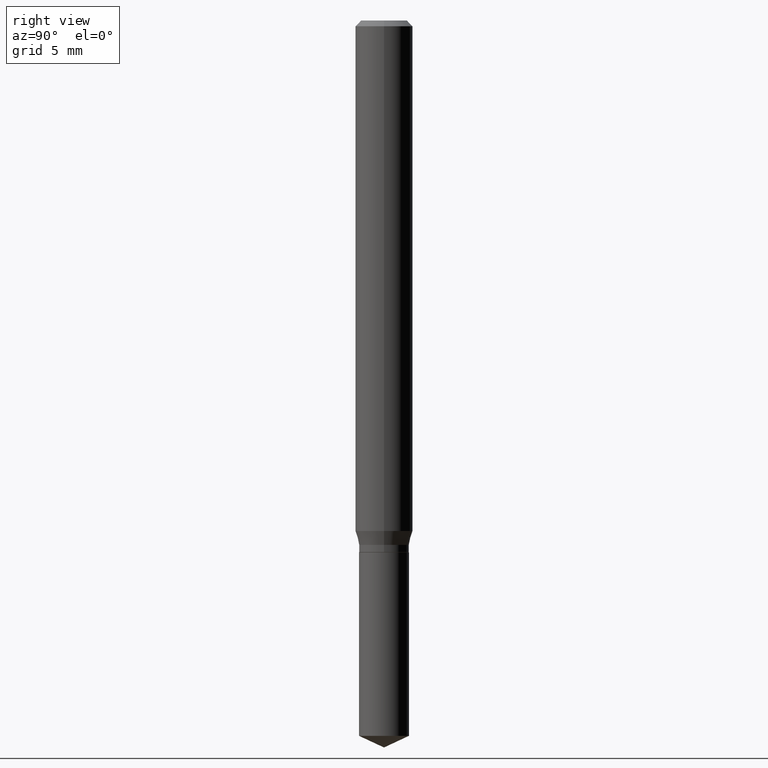
[diagram: clean part render]
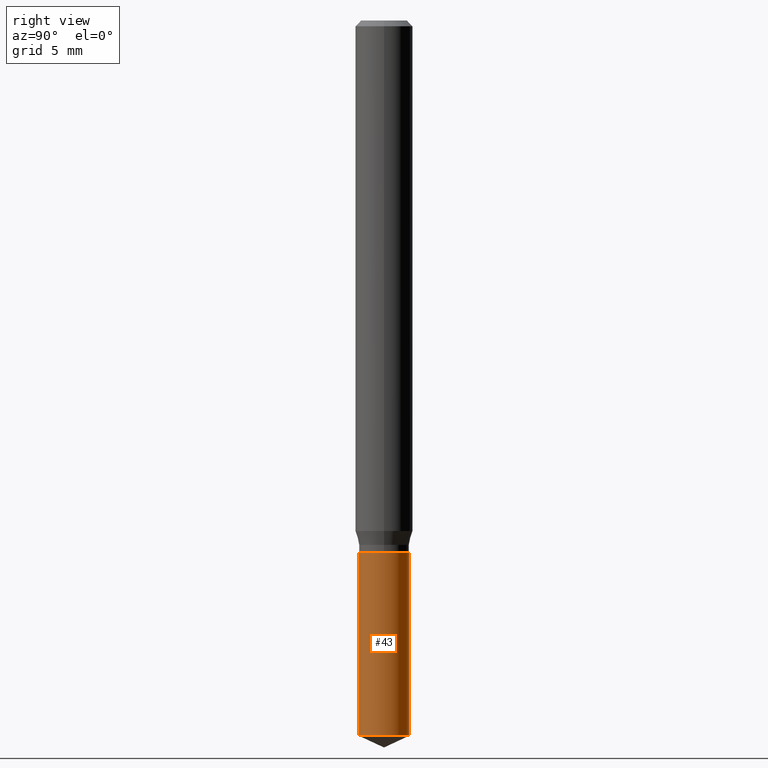
[diagram: same view with one face highlighted and labeled with its STEP entity id]
A machine part, right view. The second image highlights one B-rep face of the part: STEP entity #43.
In plain terms, the highlighted cylindrical surface (edge-blend (fillet) strip) has radius 1.3056 mm, axis along (-0, 0, 1).
Its self-contained STEP definition (entity closure, byte-faithful):
#20 = VERTEX_POINT ( 'NONE', #181 ) ;
#21 = DIRECTION ( 'NONE',  ( -6.982962677686265133E-15, -1.000000000000000000, 5.314879365105569519E-15 ) ) ;
#28 = DIRECTION ( 'NONE',  ( -2.445458899330790108E-29, 3.491495526022433205E-15, 1.000000000000000000 ) ) ;
#33 = EDGE_LOOP ( 'NONE', ( #447, #432, #130, #73 ) ) ;
#43 = ADVANCED_FACE ( 'NONE', ( #446 ), #370, .T. ) ;
#47 = EDGE_CURVE ( 'NONE', #193, #20, #106, .T. ) ;
#49 = DIRECTION ( 'NONE',  ( -6.982962677686265133E-15, -1.000000000000000000, 2.657439682552784759E-15 ) ) ;
#59 = DIRECTION ( 'NONE',  ( -2.445458899330790108E-29, 3.491495526022433205E-15, 1.000000000000000000 ) ) ;
#61 = VERTEX_POINT ( 'NONE', #166 ) ;
#73 = ORIENTED_EDGE ( 'NONE', *, *, #302, .F. ) ;
#77 = AXIS2_PLACEMENT_3D ( 'NONE', #299, #28, #374 ) ;
#81 = EDGE_CURVE ( 'NONE', #61, #193, #263, .T. ) ;
#86 = AXIS2_PLACEMENT_3D ( 'NONE', #228, #240, #49 ) ;
#91 = EDGE_CURVE ( 'NONE', #191, #20, #483, .T. ) ;
#106 = LINE ( 'NONE', #258, #123 ) ;
#115 = DIRECTION ( 'NONE',  ( -2.445458899330790108E-29, 3.491495526022433599E-15, 1.000000000000000000 ) ) ;
#123 = VECTOR ( 'NONE', #262, 39.37007874015748143 ) ;
#130 = ORIENTED_EDGE ( 'NONE', *, *, #91, .F. ) ;
#137 = VECTOR ( 'NONE', #115, 39.37007874015748143 ) ;
#166 = CARTESIAN_POINT ( 'NONE',  ( -3.589242816330381089E-16, -0.05140000000000514990, -1.472131786370833195 ) ) ;
#170 = CARTESIAN_POINT ( 'NONE',  ( 3.600048621020370796E-29, -5.139926017961446759E-15, -1.472131786370833639 ) ) ;
#181 = CARTESIAN_POINT ( 'NONE',  ( 3.652189661807275455E-16, 0.05139999999999619179, -1.094500000000000028 ) ) ;
#184 = CARTESIAN_POINT ( 'NONE',  ( -3.589242816330473287E-16, -0.05140000000000383151, -1.094499999999999806 ) ) ;
#191 = VERTEX_POINT ( 'NONE', #241 ) ;
#193 = VERTEX_POINT ( 'NONE', #353 ) ;
#228 = CARTESIAN_POINT ( 'NONE',  ( 2.676565608369631794E-29, -3.821426325363822773E-15, -1.094499999999999806 ) ) ;
#240 = DIRECTION ( 'NONE',  ( -2.445458899330790108E-29, 3.491495526022433205E-15, 1.000000000000000000 ) ) ;
#241 = CARTESIAN_POINT ( 'NONE',  ( -3.589242816330473287E-16, -0.05140000000000383151, -1.094499999999999806 ) ) ;
#258 = CARTESIAN_POINT ( 'NONE',  ( 3.652189661807182270E-16, 0.05139999999999617791, -1.094500000000000028 ) ) ;
#262 = DIRECTION ( 'NONE',  ( -2.445458899330790108E-29, 3.491495526022433599E-15, 1.000000000000000000 ) ) ;
#263 = CIRCLE ( 'NONE', #271, 0.05140000000000000818 ) ;
#271 = AXIS2_PLACEMENT_3D ( 'NONE', #170, #59, #21 ) ;
#299 = CARTESIAN_POINT ( 'NONE',  ( 2.676565608369631794E-29, -3.821426325363822773E-15, -1.094499999999999806 ) ) ;
#302 = EDGE_CURVE ( 'NONE', #61, #191, #378, .T. ) ;
#353 = CARTESIAN_POINT ( 'NONE',  ( 3.652189661807274962E-16, 0.05139999999999486646, -1.472131786370833861 ) ) ;
#370 = CYLINDRICAL_SURFACE ( 'NONE', #77, 0.05140000000000000818 ) ;
#374 = DIRECTION ( 'NONE',  ( -6.982962677686265133E-15, -1.000000000000000000, 2.657439682552784759E-15 ) ) ;
#378 = LINE ( 'NONE', #184, #137 ) ;
#432 = ORIENTED_EDGE ( 'NONE', *, *, #47, .T. ) ;
#446 = FACE_OUTER_BOUND ( 'NONE', #33, .T. ) ;
#447 = ORIENTED_EDGE ( 'NONE', *, *, #81, .T. ) ;
#483 = CIRCLE ( 'NONE', #86, 0.05140000000000000818 ) ;